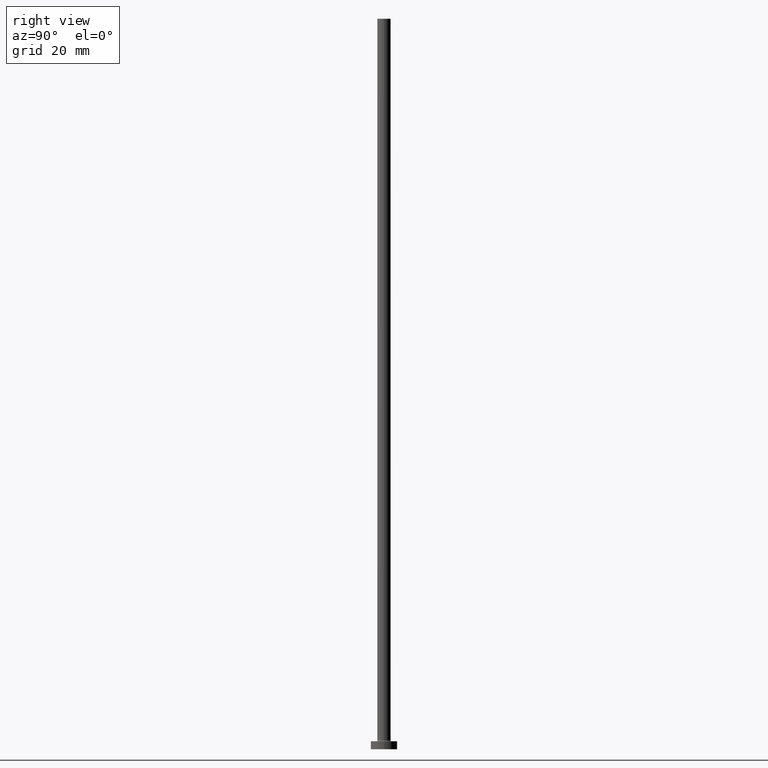
[diagram: clean part render]
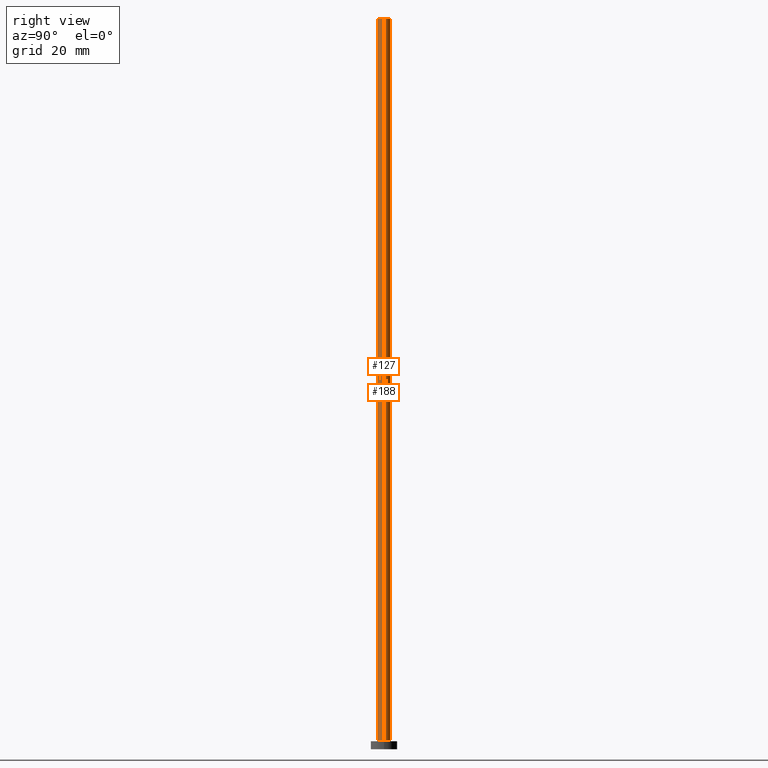
[diagram: same view with one multi-face feature highlighted, each face labeled with its STEP entity id]
A machine part, right view. The highlighted faces form ONE feature: a constant-radius fillet chain: 2 tangent blend faces with common blend radius 2.5 mm. The faces share edges in the B-rep.
Their STEP definitions:
[1] entity #188 (Cylinder):
#1 = ORIENTED_EDGE ( 'NONE', *, *, #213, .T. ) ;
#6 = DIRECTION ( 'NONE',  ( -0.000000000000000000, -0.000000000000000000, -1.000000000000000000 ) ) ;
#38 = AXIS2_PLACEMENT_3D ( 'NONE', #45, #194, #233 ) ;
#41 = LINE ( 'NONE', #120, #268 ) ;
#44 = EDGE_LOOP ( 'NONE', ( #262, #356, #1, #383 ) ) ;
#45 = CARTESIAN_POINT ( 'NONE',  ( 0.000000000000000000, 0.000000000000000000, 275.0000000000000000 ) ) ;
#55 = CIRCLE ( 'NONE', #123, 2.500000000000000000 ) ;
#59 = VERTEX_POINT ( 'NONE', #109 ) ;
#62 = CARTESIAN_POINT ( 'NONE',  ( -2.500000000000000000, 0.000000000000000000, 275.0000000000000000 ) ) ;
#76 = DIRECTION ( 'NONE',  ( -0.000000000000000000, -0.000000000000000000, -1.000000000000000000 ) ) ;
#89 = EDGE_CURVE ( 'NONE', #366, #59, #257, .T. ) ;
#95 = CARTESIAN_POINT ( 'NONE',  ( 2.500000000000000000, 3.061616997868383141E-16, 275.0000000000000000 ) ) ;
#109 = CARTESIAN_POINT ( 'NONE',  ( -2.500000000000000000, 0.000000000000000000, 3.300000000000025135 ) ) ;
#110 = VERTEX_POINT ( 'NONE', #299 ) ;
#120 = CARTESIAN_POINT ( 'NONE',  ( 2.500000000000000000, 3.061616997868383141E-16, 275.0000000000000000 ) ) ;
#123 = AXIS2_PLACEMENT_3D ( 'NONE', #167, #314, #281 ) ;
#144 = EDGE_CURVE ( 'NONE', #260, #366, #343, .T. ) ;
#161 = DIRECTION ( 'NONE',  ( -0.000000000000000000, -0.000000000000000000, -1.000000000000000000 ) ) ;
#167 = CARTESIAN_POINT ( 'NONE',  ( 0.000000000000000000, 0.000000000000000000, 3.300000000000025135 ) ) ;
#188 = ADVANCED_FACE ( 'NONE', ( #205 ), #348, .T. ) ;
#194 = DIRECTION ( 'NONE',  ( 0.000000000000000000, 0.000000000000000000, 1.000000000000000000 ) ) ;
#205 = FACE_OUTER_BOUND ( 'NONE', #44, .T. ) ;
#213 = EDGE_CURVE ( 'NONE', #110, #59, #55, .T. ) ;
#233 = DIRECTION ( 'NONE',  ( 1.000000000000000000, 0.000000000000000000, 0.000000000000000000 ) ) ;
#257 = LINE ( 'NONE', #360, #292 ) ;
#260 = VERTEX_POINT ( 'NONE', #95 ) ;
#262 = ORIENTED_EDGE ( 'NONE', *, *, #144, .F. ) ;
#268 = VECTOR ( 'NONE', #161, 1000.000000000000000 ) ;
#277 = CARTESIAN_POINT ( 'NONE',  ( 0.000000000000000000, 0.000000000000000000, 275.0000000000000000 ) ) ;
#278 = DIRECTION ( 'NONE',  ( -1.000000000000000000, 0.000000000000000000, 0.000000000000000000 ) ) ;
#281 = DIRECTION ( 'NONE',  ( 1.000000000000000000, 0.000000000000000000, 0.000000000000000000 ) ) ;
#292 = VECTOR ( 'NONE', #6, 1000.000000000000000 ) ;
#299 = CARTESIAN_POINT ( 'NONE',  ( 2.500000000000000000, 3.061616997868383141E-16, 3.300000000000025135 ) ) ;
#314 = DIRECTION ( 'NONE',  ( 0.000000000000000000, 0.000000000000000000, 1.000000000000000000 ) ) ;
#343 = CIRCLE ( 'NONE', #38, 2.500000000000000000 ) ;
#348 = CYLINDRICAL_SURFACE ( 'NONE', #429, 2.500000000000000000 ) ;
#356 = ORIENTED_EDGE ( 'NONE', *, *, #406, .T. ) ;
#360 = CARTESIAN_POINT ( 'NONE',  ( -2.500000000000000000, 0.000000000000000000, 275.0000000000000000 ) ) ;
#366 = VERTEX_POINT ( 'NONE', #62 ) ;
#383 = ORIENTED_EDGE ( 'NONE', *, *, #89, .F. ) ;
#406 = EDGE_CURVE ( 'NONE', #260, #110, #41, .T. ) ;
#429 = AXIS2_PLACEMENT_3D ( 'NONE', #277, #76, #278 ) ;
[2] entity #127 (Cylinder):
#6 = DIRECTION ( 'NONE',  ( -0.000000000000000000, -0.000000000000000000, -1.000000000000000000 ) ) ;
#19 = CARTESIAN_POINT ( 'NONE',  ( 0.000000000000000000, 0.000000000000000000, 275.0000000000000000 ) ) ;
#31 = DIRECTION ( 'NONE',  ( -0.000000000000000000, -0.000000000000000000, -1.000000000000000000 ) ) ;
#41 = LINE ( 'NONE', #120, #268 ) ;
#43 = DIRECTION ( 'NONE',  ( 1.000000000000000000, 0.000000000000000000, 0.000000000000000000 ) ) ;
#59 = VERTEX_POINT ( 'NONE', #109 ) ;
#62 = CARTESIAN_POINT ( 'NONE',  ( -2.500000000000000000, 0.000000000000000000, 275.0000000000000000 ) ) ;
#67 = AXIS2_PLACEMENT_3D ( 'NONE', #261, #31, #226 ) ;
#89 = EDGE_CURVE ( 'NONE', #366, #59, #257, .T. ) ;
#95 = CARTESIAN_POINT ( 'NONE',  ( 2.500000000000000000, 3.061616997868383141E-16, 275.0000000000000000 ) ) ;
#109 = CARTESIAN_POINT ( 'NONE',  ( -2.500000000000000000, 0.000000000000000000, 3.300000000000025135 ) ) ;
#110 = VERTEX_POINT ( 'NONE', #299 ) ;
#120 = CARTESIAN_POINT ( 'NONE',  ( 2.500000000000000000, 3.061616997868383141E-16, 275.0000000000000000 ) ) ;
#127 = ADVANCED_FACE ( 'NONE', ( #295 ), #232, .T. ) ;
#141 = ORIENTED_EDGE ( 'NONE', *, *, #389, .T. ) ;
#161 = DIRECTION ( 'NONE',  ( -0.000000000000000000, -0.000000000000000000, -1.000000000000000000 ) ) ;
#183 = CARTESIAN_POINT ( 'NONE',  ( 0.000000000000000000, 0.000000000000000000, 3.300000000000025135 ) ) ;
#198 = EDGE_CURVE ( 'NONE', #366, #260, #200, .T. ) ;
#200 = CIRCLE ( 'NONE', #452, 2.500000000000000000 ) ;
#207 = AXIS2_PLACEMENT_3D ( 'NONE', #183, #300, #426 ) ;
#222 = ORIENTED_EDGE ( 'NONE', *, *, #89, .T. ) ;
#226 = DIRECTION ( 'NONE',  ( -1.000000000000000000, 0.000000000000000000, 0.000000000000000000 ) ) ;
#232 = CYLINDRICAL_SURFACE ( 'NONE', #67, 2.500000000000000000 ) ;
#257 = LINE ( 'NONE', #360, #292 ) ;
#260 = VERTEX_POINT ( 'NONE', #95 ) ;
#261 = CARTESIAN_POINT ( 'NONE',  ( 0.000000000000000000, 0.000000000000000000, 275.0000000000000000 ) ) ;
#264 = ORIENTED_EDGE ( 'NONE', *, *, #406, .F. ) ;
#268 = VECTOR ( 'NONE', #161, 1000.000000000000000 ) ;
#285 = CIRCLE ( 'NONE', #207, 2.500000000000000000 ) ;
#292 = VECTOR ( 'NONE', #6, 1000.000000000000000 ) ;
#295 = FACE_OUTER_BOUND ( 'NONE', #296, .T. ) ;
#296 = EDGE_LOOP ( 'NONE', ( #264, #333, #222, #141 ) ) ;
#299 = CARTESIAN_POINT ( 'NONE',  ( 2.500000000000000000, 3.061616997868383141E-16, 3.300000000000025135 ) ) ;
#300 = DIRECTION ( 'NONE',  ( 0.000000000000000000, 0.000000000000000000, 1.000000000000000000 ) ) ;
#324 = DIRECTION ( 'NONE',  ( 0.000000000000000000, 0.000000000000000000, 1.000000000000000000 ) ) ;
#333 = ORIENTED_EDGE ( 'NONE', *, *, #198, .F. ) ;
#360 = CARTESIAN_POINT ( 'NONE',  ( -2.500000000000000000, 0.000000000000000000, 275.0000000000000000 ) ) ;
#366 = VERTEX_POINT ( 'NONE', #62 ) ;
#389 = EDGE_CURVE ( 'NONE', #59, #110, #285, .T. ) ;
#406 = EDGE_CURVE ( 'NONE', #260, #110, #41, .T. ) ;
#426 = DIRECTION ( 'NONE',  ( 1.000000000000000000, 0.000000000000000000, 0.000000000000000000 ) ) ;
#452 = AXIS2_PLACEMENT_3D ( 'NONE', #19, #324, #43 ) ;